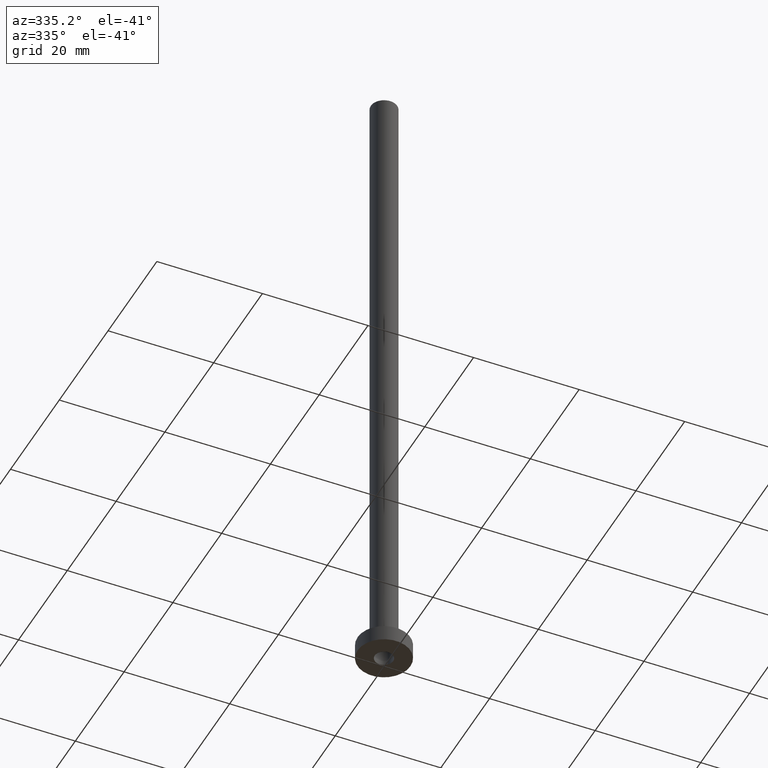
[diagram: clean part render]
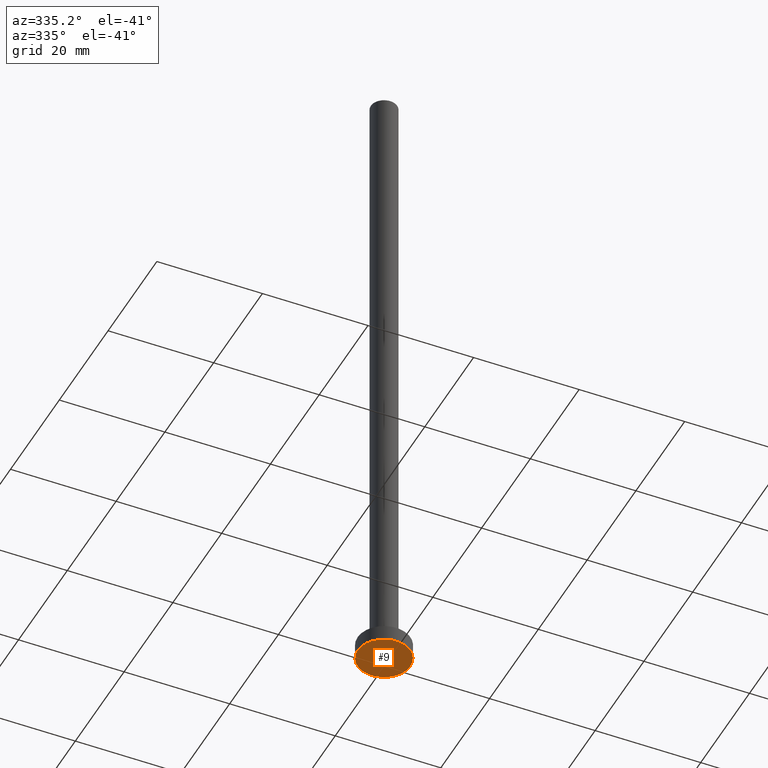
[diagram: same view with one face highlighted and labeled with its STEP entity id]
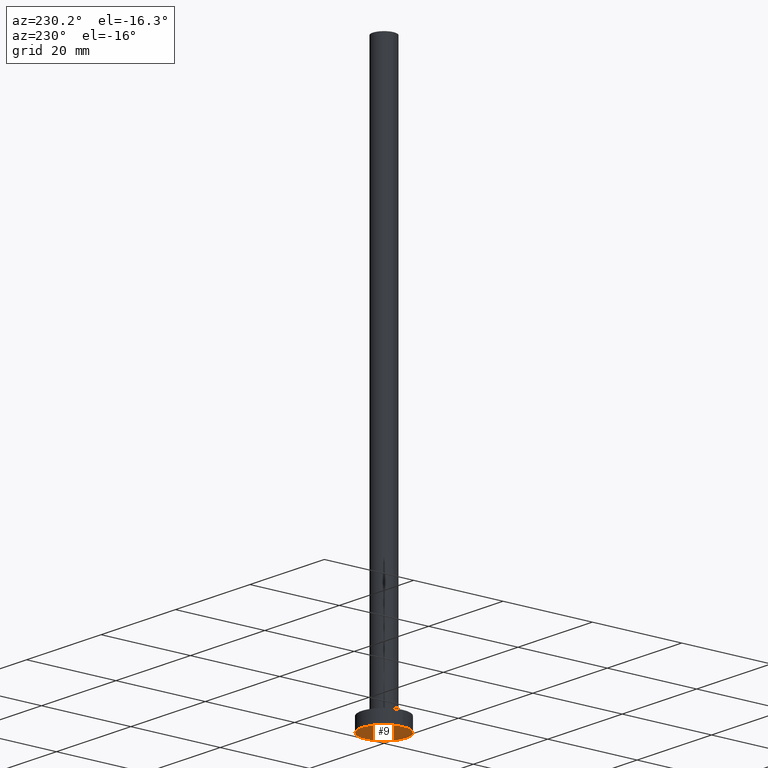
[diagram: same view with one face highlighted and labeled with its STEP entity id]
A machine part, auxiliary view. The second image highlights one B-rep face of the part: STEP entity #9.
A second angle (auxiliary view) of the same face is appended — the face is thin or edge-on in the first view.
In plain terms, the highlighted planar face has unit normal (0, 0, 1).
Its self-contained STEP definition (entity closure, byte-faithful):
#5 = FACE_BOUND ( 'NONE', #326, .T. ) ;
#7 = VERTEX_POINT ( 'NONE', #112 ) ;
#9 = ADVANCED_FACE ( 'NONE', ( #5, #266 ), #74, .F. ) ;
#15 = CARTESIAN_POINT ( 'NONE',  ( 5.000000000000000000, 6.123233995736766282E-16, 0.000000000000000000 ) ) ;
#20 = VERTEX_POINT ( 'NONE', #15 ) ;
#28 = DIRECTION ( 'NONE',  ( 0.000000000000000000, 0.000000000000000000, 1.000000000000000000 ) ) ;
#29 = ORIENTED_EDGE ( 'NONE', *, *, #374, .F. ) ;
#41 = VERTEX_POINT ( 'NONE', #126 ) ;
#44 = EDGE_LOOP ( 'NONE', ( #310, #274 ) ) ;
#71 = CARTESIAN_POINT ( 'NONE',  ( 1.750000000000000000, 2.143131898507868297E-16, 0.000000000000000000 ) ) ;
#74 = PLANE ( 'NONE',  #115 ) ;
#75 = DIRECTION ( 'NONE',  ( -0.000000000000000000, -0.000000000000000000, -1.000000000000000000 ) ) ;
#80 = AXIS2_PLACEMENT_3D ( 'NONE', #370, #75, #436 ) ;
#95 = CARTESIAN_POINT ( 'NONE',  ( 0.000000000000000000, 0.000000000000000000, 0.000000000000000000 ) ) ;
#99 = DIRECTION ( 'NONE',  ( 1.000000000000000000, 0.000000000000000000, 0.000000000000000000 ) ) ;
#112 = CARTESIAN_POINT ( 'NONE',  ( -5.000000000000000000, 0.000000000000000000, 0.000000000000000000 ) ) ;
#115 = AXIS2_PLACEMENT_3D ( 'NONE', #238, #379, #344 ) ;
#126 = CARTESIAN_POINT ( 'NONE',  ( -1.750000000000000000, 0.000000000000000000, 0.000000000000000000 ) ) ;
#175 = EDGE_CURVE ( 'NONE', #7, #20, #201, .T. ) ;
#177 = DIRECTION ( 'NONE',  ( 0.000000000000000000, 0.000000000000000000, 1.000000000000000000 ) ) ;
#199 = EDGE_CURVE ( 'NONE', #20, #7, #270, .T. ) ;
#201 = CIRCLE ( 'NONE', #457, 5.000000000000000000 ) ;
#231 = CARTESIAN_POINT ( 'NONE',  ( 0.000000000000000000, 0.000000000000000000, 0.000000000000000000 ) ) ;
#238 = CARTESIAN_POINT ( 'NONE',  ( 0.000000000000000000, 0.000000000000000000, 0.000000000000000000 ) ) ;
#250 = CIRCLE ( 'NONE', #80, 1.750000000000000000 ) ;
#261 = DIRECTION ( 'NONE',  ( 1.000000000000000000, 0.000000000000000000, 0.000000000000000000 ) ) ;
#266 = FACE_OUTER_BOUND ( 'NONE', #44, .T. ) ;
#270 = CIRCLE ( 'NONE', #446, 5.000000000000000000 ) ;
#274 = ORIENTED_EDGE ( 'NONE', *, *, #199, .F. ) ;
#310 = ORIENTED_EDGE ( 'NONE', *, *, #175, .F. ) ;
#326 = EDGE_LOOP ( 'NONE', ( #343, #29 ) ) ;
#336 = DIRECTION ( 'NONE',  ( -0.000000000000000000, -0.000000000000000000, -1.000000000000000000 ) ) ;
#343 = ORIENTED_EDGE ( 'NONE', *, *, #347, .F. ) ;
#344 = DIRECTION ( 'NONE',  ( 1.000000000000000000, 0.000000000000000000, -0.000000000000000000 ) ) ;
#347 = EDGE_CURVE ( 'NONE', #41, #391, #250, .T. ) ;
#354 = AXIS2_PLACEMENT_3D ( 'NONE', #231, #336, #442 ) ;
#367 = CARTESIAN_POINT ( 'NONE',  ( 0.000000000000000000, 0.000000000000000000, 0.000000000000000000 ) ) ;
#370 = CARTESIAN_POINT ( 'NONE',  ( 0.000000000000000000, 0.000000000000000000, 0.000000000000000000 ) ) ;
#374 = EDGE_CURVE ( 'NONE', #391, #41, #413, .T. ) ;
#379 = DIRECTION ( 'NONE',  ( 0.000000000000000000, 0.000000000000000000, 1.000000000000000000 ) ) ;
#391 = VERTEX_POINT ( 'NONE', #71 ) ;
#413 = CIRCLE ( 'NONE', #354, 1.750000000000000000 ) ;
#436 = DIRECTION ( 'NONE',  ( 1.000000000000000000, 0.000000000000000000, 0.000000000000000000 ) ) ;
#442 = DIRECTION ( 'NONE',  ( 1.000000000000000000, 0.000000000000000000, 0.000000000000000000 ) ) ;
#446 = AXIS2_PLACEMENT_3D ( 'NONE', #95, #28, #261 ) ;
#457 = AXIS2_PLACEMENT_3D ( 'NONE', #367, #177, #99 ) ;